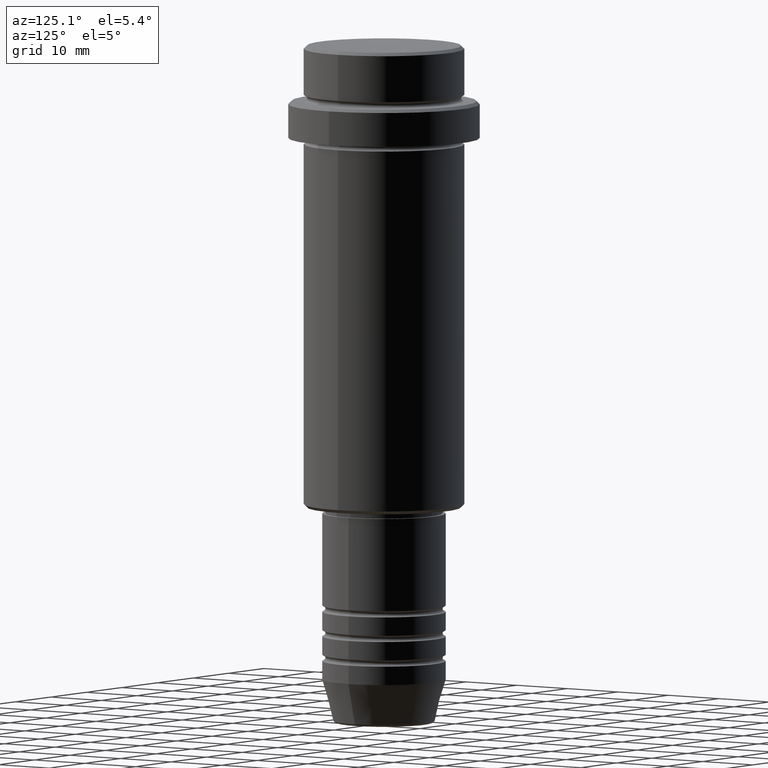
[diagram: clean part render]
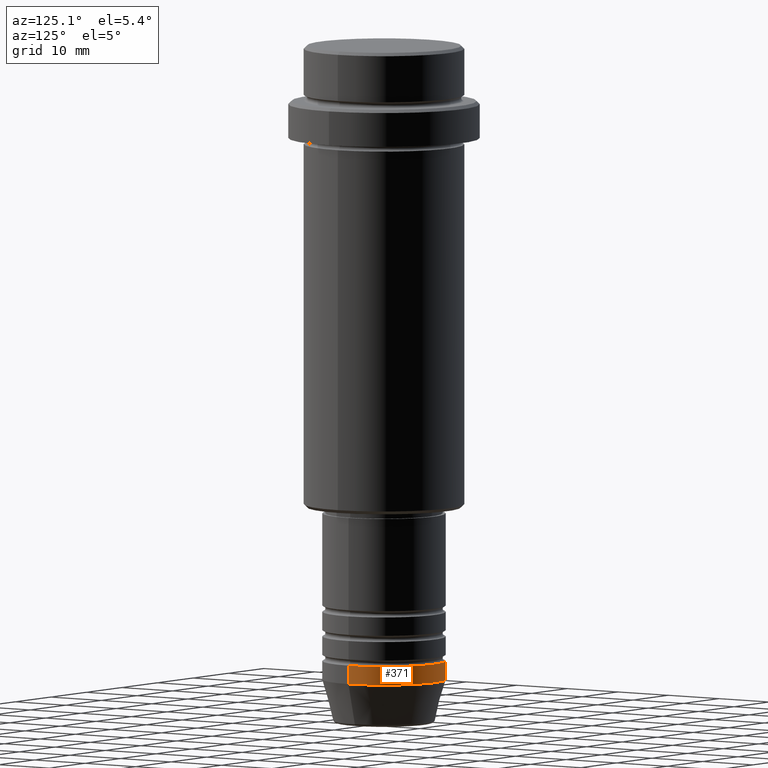
[diagram: same view with one face highlighted and labeled with its STEP entity id]
A machine part, auxiliary view. The second image highlights one B-rep face of the part: STEP entity #371.
In plain terms, the highlighted cylindrical surface (partial cylindrical patch) has radius 10 mm, axis along (-0, -0, 1).
Its self-contained STEP definition (entity closure, byte-faithful):
#2 = DIRECTION ( 'NONE',  ( -0.000000000000000000, -0.000000000000000000, 1.000000000000000000 ) ) ;
#27 = EDGE_CURVE ( 'NONE', #1045, #124, #401, .T. ) ;
#91 = AXIS2_PLACEMENT_3D ( 'NONE', #1366, #176, #1260 ) ;
#98 = DIRECTION ( 'NONE',  ( -0.000000000000000000, -0.000000000000000000, 1.000000000000000000 ) ) ;
#109 = DIRECTION ( 'NONE',  ( 1.000000000000000000, 0.000000000000000000, 0.000000000000000000 ) ) ;
#124 = VERTEX_POINT ( 'NONE', #597 ) ;
#176 = DIRECTION ( 'NONE',  ( -0.000000000000000000, -0.000000000000000000, 1.000000000000000000 ) ) ;
#226 = LINE ( 'NONE', #811, #1162 ) ;
#228 = ORIENTED_EDGE ( 'NONE', *, *, #772, .F. ) ;
#371 = ADVANCED_FACE ( 'NONE', ( #750 ), #644, .T. ) ;
#401 = CIRCLE ( 'NONE', #705, 10.00000000000000000 ) ;
#425 = CIRCLE ( 'NONE', #91, 10.00000000000000000 ) ;
#462 = DIRECTION ( 'NONE',  ( -0.000000000000000000, -0.000000000000000000, 1.000000000000000000 ) ) ;
#469 = CARTESIAN_POINT ( 'NONE',  ( -10.00000000000000000, 1.224646799147353256E-15, -100.0000000000000000 ) ) ;
#514 = ORIENTED_EDGE ( 'NONE', *, *, #27, .T. ) ;
#515 = DIRECTION ( 'NONE',  ( 1.000000000000000000, 0.000000000000000000, 0.000000000000000000 ) ) ;
#535 = CARTESIAN_POINT ( 'NONE',  ( 0.000000000000000000, 0.000000000000000000, 0.000000000000000000 ) ) ;
#597 = CARTESIAN_POINT ( 'NONE',  ( -10.00000000000000000, 1.224646799147353256E-15, -103.0000000000000142 ) ) ;
#644 = CYLINDRICAL_SURFACE ( 'NONE', #1113, 10.00000000000000000 ) ;
#705 = AXIS2_PLACEMENT_3D ( 'NONE', #1156, #2, #109 ) ;
#750 = FACE_OUTER_BOUND ( 'NONE', #1225, .T. ) ;
#772 = EDGE_CURVE ( 'NONE', #785, #1380, #425, .T. ) ;
#774 = CARTESIAN_POINT ( 'NONE',  ( 10.00000000000000000, 0.000000000000000000, -103.0000000000000142 ) ) ;
#781 = LINE ( 'NONE', #972, #1417 ) ;
#785 = VERTEX_POINT ( 'NONE', #1058 ) ;
#811 = CARTESIAN_POINT ( 'NONE',  ( 10.00000000000000000, 0.000000000000000000, 0.000000000000000000 ) ) ;
#870 = ORIENTED_EDGE ( 'NONE', *, *, #1327, .T. ) ;
#972 = CARTESIAN_POINT ( 'NONE',  ( -10.00000000000000000, 1.224646799147353256E-15, 0.000000000000000000 ) ) ;
#1045 = VERTEX_POINT ( 'NONE', #774 ) ;
#1058 = CARTESIAN_POINT ( 'NONE',  ( 10.00000000000000000, 0.000000000000000000, -100.0000000000000000 ) ) ;
#1113 = AXIS2_PLACEMENT_3D ( 'NONE', #535, #1176, #515 ) ;
#1156 = CARTESIAN_POINT ( 'NONE',  ( 0.000000000000000000, 0.000000000000000000, -103.0000000000000142 ) ) ;
#1162 = VECTOR ( 'NONE', #462, 1000.000000000000000 ) ;
#1176 = DIRECTION ( 'NONE',  ( -0.000000000000000000, -0.000000000000000000, 1.000000000000000000 ) ) ;
#1225 = EDGE_LOOP ( 'NONE', ( #514, #870, #228, #1351 ) ) ;
#1260 = DIRECTION ( 'NONE',  ( 1.000000000000000000, 0.000000000000000000, 0.000000000000000000 ) ) ;
#1327 = EDGE_CURVE ( 'NONE', #124, #1380, #781, .T. ) ;
#1351 = ORIENTED_EDGE ( 'NONE', *, *, #1388, .F. ) ;
#1366 = CARTESIAN_POINT ( 'NONE',  ( 0.000000000000000000, 0.000000000000000000, -100.0000000000000000 ) ) ;
#1380 = VERTEX_POINT ( 'NONE', #469 ) ;
#1388 = EDGE_CURVE ( 'NONE', #1045, #785, #226, .T. ) ;
#1417 = VECTOR ( 'NONE', #98, 1000.000000000000000 ) ;